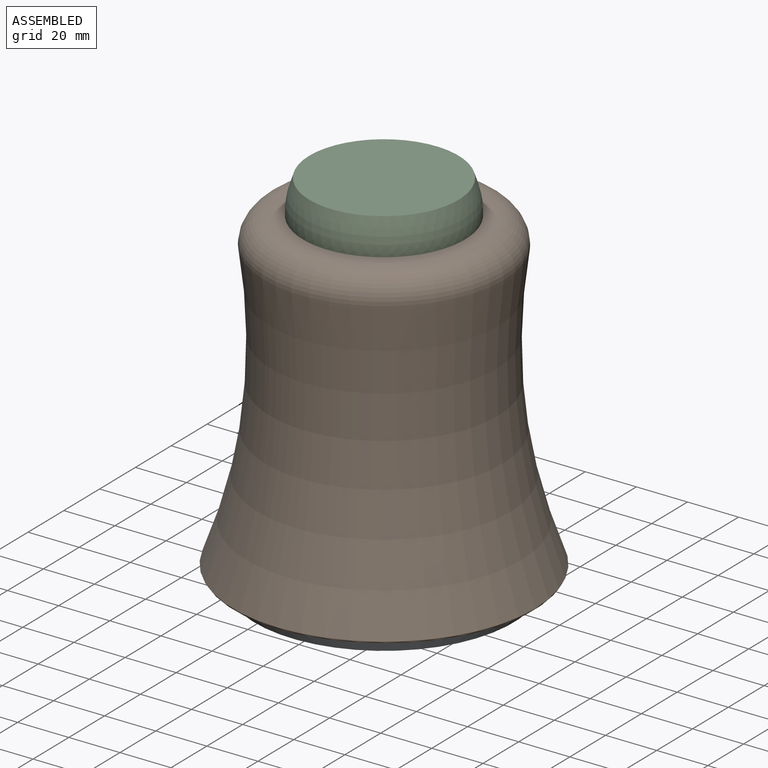
[diagram: assembled view]
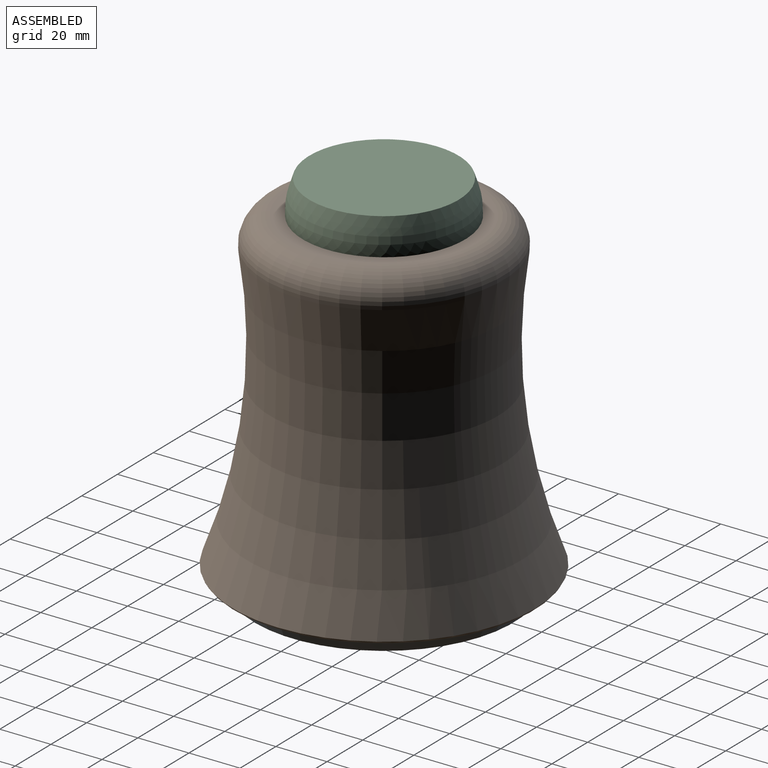
[diagram: assembled view, second angle]
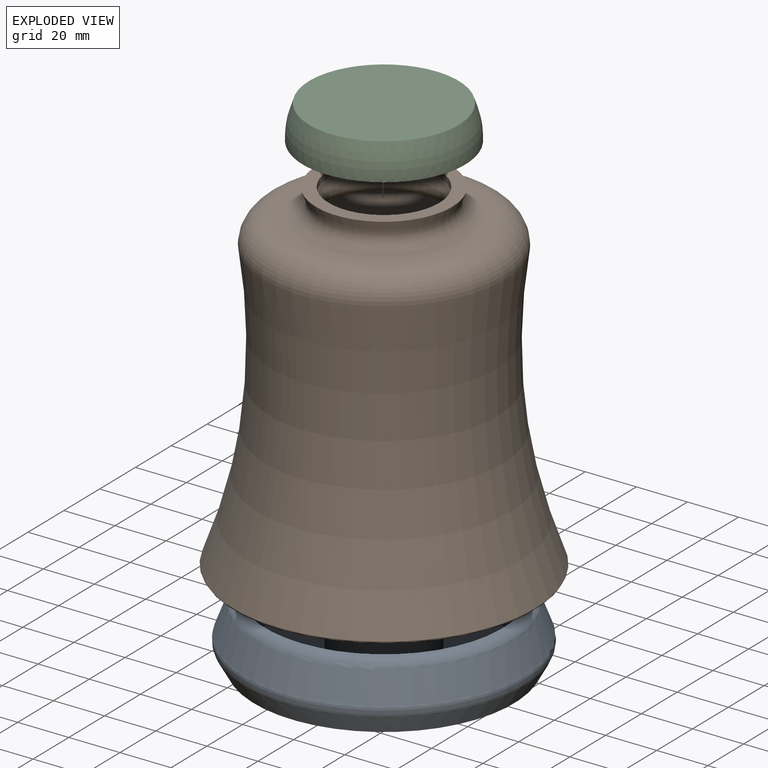
[diagram: exploded view]
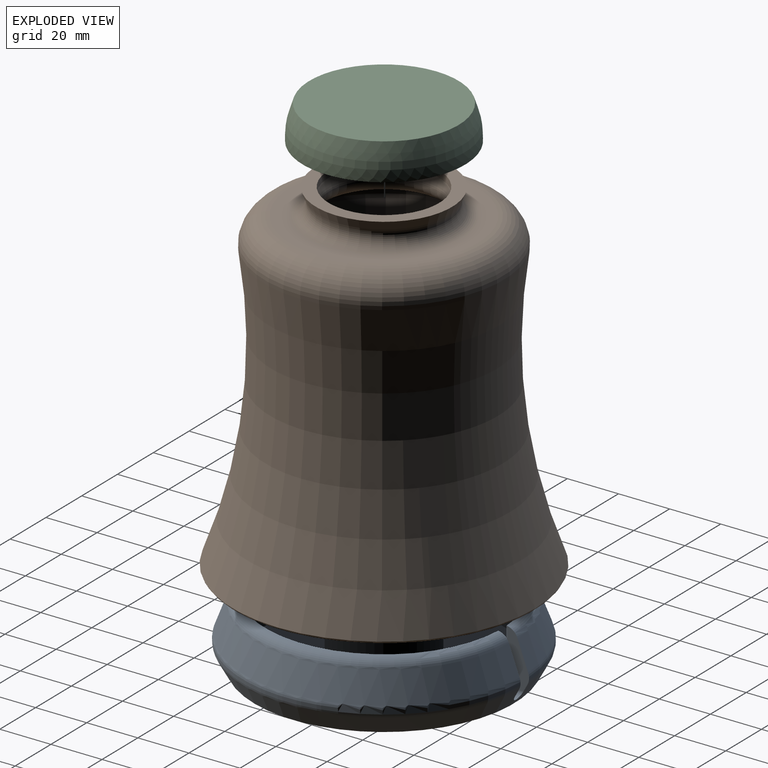
[diagram: exploded view, second angle]
ASSEMBLY  parts=3 mates=3
PART A: 19 faces, bbox 219.5x219.4x153.2 mm
  f0: cone r=50.8mm half-angle=28.9deg, axis (0,0,1), area 2524.8mm2, adj f1,f4,f10,f12,f13
  f1: cone r=50.8mm half-angle=28.9deg, axis (0,0,1), area 0.1mm2, adj f0,f11,f13
  f2: torus R=254.51mm, axis (0,0,-1), area 3794.6mm2, adj f11,f12,f13,f14
  f3: cylinder r=46.35mm len=92.71mm, axis (0,0,1), area 6824.5mm2, adj f5,f10,f11,f12,f14
  f4: plane 101.6x101.6mm, normal (0,0,-1), area 8057.1mm2, adj f0,f6,f7,f8,f9
  f5: plane 92.71x92.71mm, normal (0,0,1), area 5560.3mm2, adj f3,f6,f7,f8,f9,f16
  f6: cylinder r=2mm len=4mm, axis (0,0,1), area 19.9mm2, adj f4,f5
  f7: cylinder r=2mm len=4mm, axis (0,0,1), area 19.9mm2, adj f4,f5
  f8: cylinder r=2mm len=4mm, axis (0,0,1), area 19.9mm2, adj f4,f5
  f9: cylinder r=2mm len=4mm, axis (0,0,1), area 19.9mm2, adj f4,f5
  f10: cylinder r=2.38mm len=6.64mm, axis (0,1,0), area 43.4mm2, adj f0,f3,f11,f12
  f11: plane 21.49x8.87mm, normal (-1,0,0), area 137.5mm2, adj f1,f2,f3,f10,f13,f14
  f12: plane 21.49x8.87mm, normal (1,0,0), area 137.5mm2, adj f0,f2,f3,f10,f13,f14
  f13: torus R=50.07mm, axis (0,0,1), area 1541.8mm2, adj f0,f1,f2,f11,f12
  f14: torus R=45.87mm, axis (0,0,-1), area 1753.5mm2, adj f2,f3,f11,f12
  f15: cylinder r=12.7mm len=25.4mm, axis (0,0,-1), area 2026.8mm2, adj f17,f18
  f16: cylinder r=19.05mm len=38.1mm, axis (0,0,-1), area 3040.2mm2, adj f5,f17
  f17: plane 38.1x38.1mm, normal (0,0,1), area 633.4mm2, adj f15,f16
  f18: plane 25.4x25.4mm, normal (0,0,1), area 506.7mm2, adj f15
PART B: 16 faces, bbox 229.4x229.4x306.3 mm
  f0: cone r=26.67mm half-angle=20.8deg, axis (0,0,1), area 573.5mm2, adj f1,f12
  f1: plane 53.34x53.34mm, normal (0,0,1), area 770.2mm2, adj f0,f2
  f2: cylinder r=21.59mm len=43.18mm, axis (0,0,-1), area 344.6mm2, adj f1,f3
  f3: plane 45.98x45.98mm, normal (0,0,-1), area 195.7mm2, adj f2,f4
  f4: cone r=22.99mm half-angle=20.8deg, axis (0,0,1), area 492.4mm2, adj f3,f11
  f5: plane 67.46x67.46mm, normal (0,0,-1), area 1369.8mm2, adj f11,f14
  f6: torus R=257.31mm, axis (0,0,-1), area 30983.9mm2, adj f7,f14
  f7: cone r=55.7mm half-angle=24.9deg, axis (0,0,-1), area 990.2mm2, adj f6,f8
  f8: plane 117.25x117.25mm, normal (0,0,-1), area 634.2mm2, adj f7,f13
  f9: torus R=257.31mm, axis (0,0,-1), area 34198.3mm2, adj f13,f15
  f10: plane 73.36x73.36mm, normal (0,0,1), area 1366.7mm2, adj f12,f15
  f11: torus R=26.49mm, axis (0,0,-1), area 1415.5mm2, adj f4,f5
  f12: torus R=30.17mm, axis (0,0,-1), area 1642.9mm2, adj f0,f10
  f13: cone r=58.62mm half-angle=34.2deg, axis (0,0,1), area 328.7mm2, adj f8,f9
  f14: torus R=33.73mm, axis (0,0,1), area 4429.4mm2, adj f5,f6
  f15: torus R=36.68mm, axis (0,0,1), area 4791.1mm2, adj f9,f10
PART C: 11 faces, bbox 63.5x63.5x13.3 mm
  f0: plane 58.42x58.42mm, normal (0,0,1), area 2680.5mm2, adj f9
  f1: plane 31.75x31.75mm, normal (0,0,-1), area 791.7mm2, adj f2
  f2: cylinder r=15.88mm len=31.75mm, axis (0,0,-1), area 633.4mm2, adj f1,f3
  f3: plane 38.1x38.1mm, normal (0,0,-1), area 348.4mm2, adj f2,f4
  f4: cylinder r=19.05mm len=38.1mm, axis (0,0,-1), area 760.1mm2, adj f3,f5
  f5: plane 57.15x57.15mm, normal (0,0,-1), area 1425.1mm2, adj f4,f6
  f6: cylinder r=28.57mm len=57.15mm, axis (0,0,-1), area 1824.1mm2, adj f5,f7
  f7: plane 63.5x63.5mm, normal (0,0,-1), area 601.7mm2, adj f6,f8
  f8: cylinder r=31.75mm len=63.5mm, axis (0,0,-1), area 317.8mm2, adj f7,f10
  f9: cone r=31.75mm half-angle=18.4deg, axis (0,0,-1), area 732.9mm2, adj f0,f10
  f10: torus R=6.35mm, axis (0,0,1), area 1607.9mm2, adj f8,f9
PLACE A t=(-4.64,17.06,-55.56)mm
PLACE B t=(-4.64,17.06,-55.54)mm
PLACE C t=(-4.64,17.06,-55.54)mm
MATE slider B.f6 <-> A.f2  axis (0,0,-1) through (-4.64,17.06,-0.12)mm
MATE planar C.f2 <-> B.f0  axis (0,0,-1) through (-4.64,17.06,68.41)mm
MATE slider C.f2 <-> B.f0  axis (0,0,-1) through (-4.64,17.06,69.21)mm
